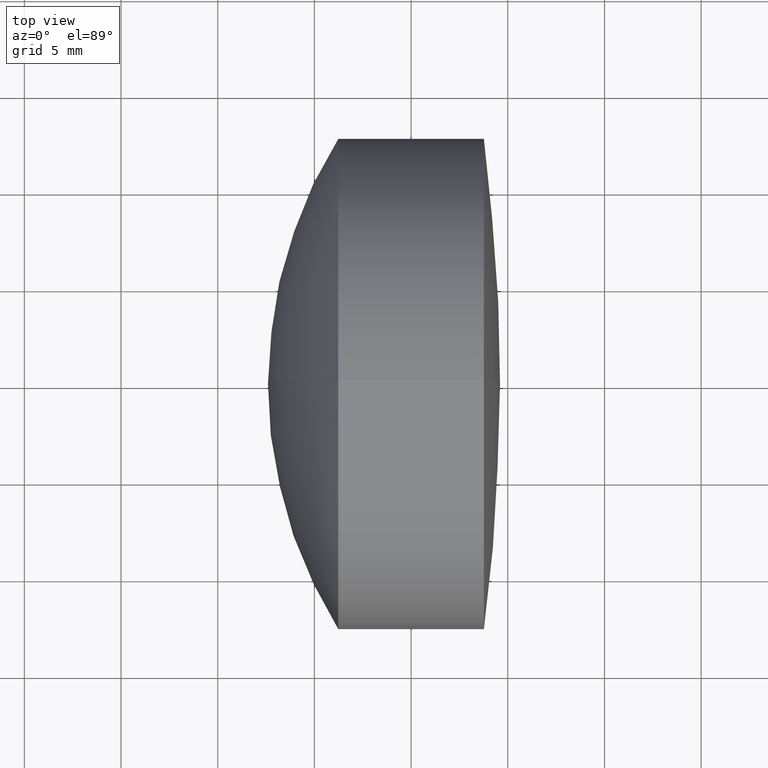
[diagram: clean part render]
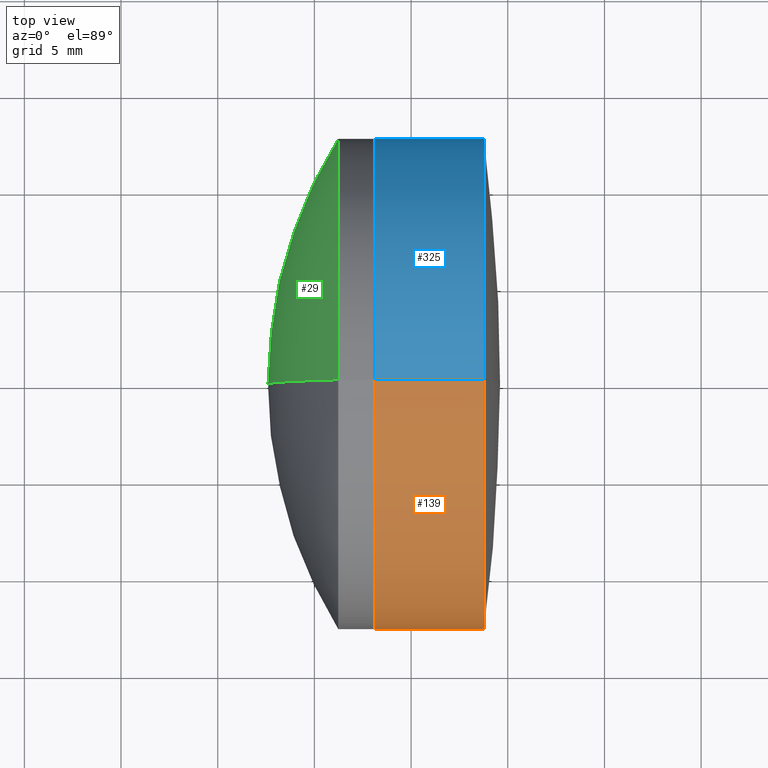
[diagram: same view with three faces highlighted in distinct colors, each labeled with its STEP entity id]
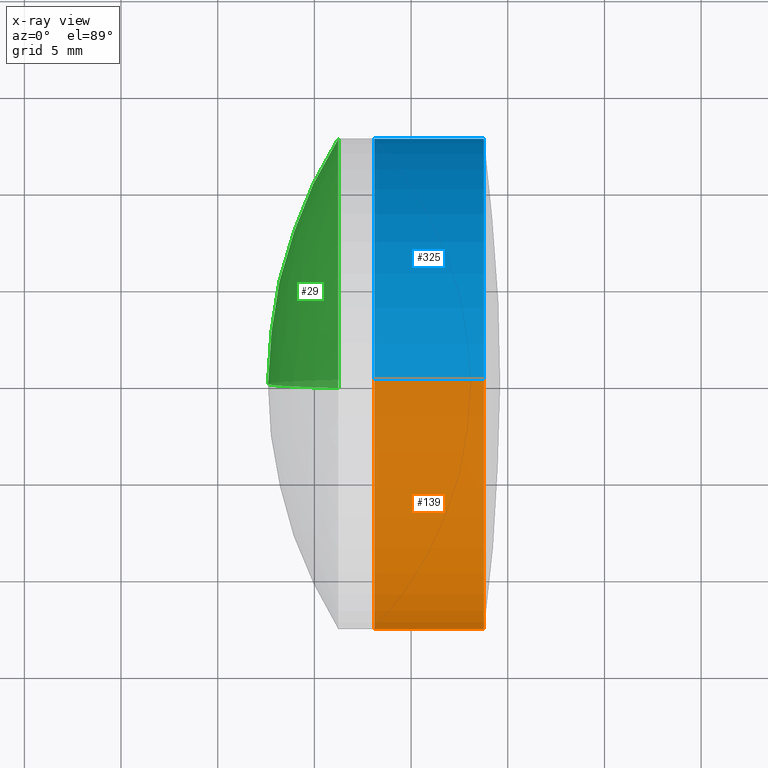
[diagram: x-ray of the same camera — body ghosted, the three highlighted faces saturated]
A machine part, top view with three faces highlighted in distinct colors.
The next image is the same camera in x-ray (body ghosted, the three faces saturated) — at least one of them is partly hidden behind the body in this view.
Their STEP definitions:

[orange] entity #139 — the highlighted cylindrical surface (partial cylindrical patch) has radius 12.7 mm, axis along (-1, -0, -0).
#9 = CARTESIAN_POINT ( 'NONE',  ( 278.0956821889693100, 0.0000000000000000000, 12.69999999999997800 ) ) ;
#14 = DIRECTION ( 'NONE',  ( -1.000000000000000000, -0.0000000000000000000, -0.0000000000000000000 ) ) ;
#33 = VECTOR ( 'NONE', #181, 1000.000000000000000 ) ;
#38 = EDGE_CURVE ( 'NONE', #256, #341, #107, .T. ) ;
#45 = EDGE_CURVE ( 'NONE', #235, #74, #172, .T. ) ;
#46 = DIRECTION ( 'NONE',  ( 0.0000000000000000000, 0.0000000000000000000, 1.000000000000000000 ) ) ;
#64 = CARTESIAN_POINT ( 'NONE',  ( -0.5519199926577972300, 0.0000000000000000000, 12.69999999999997100 ) ) ;
#71 = DIRECTION ( 'NONE',  ( 0.0000000000000000000, 0.0000000000000000000, 1.000000000000000000 ) ) ;
#74 = VERTEX_POINT ( 'NONE', #185 ) ;
#93 = CARTESIAN_POINT ( 'NONE',  ( 278.0956821889693100, 0.0000000000000000000, 0.0000000000000000000 ) ) ;
#97 = EDGE_LOOP ( 'NONE', ( #111, #119, #232, #127 ) ) ;
#99 = CARTESIAN_POINT ( 'NONE',  ( 283.7663387579516400, 1.555301434917134700E-015, -12.69999999999996600 ) ) ;
#105 = DIRECTION ( 'NONE',  ( -1.000000000000000000, -0.0000000000000000000, -0.0000000000000000000 ) ) ;
#107 = CIRCLE ( 'NONE', #274, 12.69999999999997800 ) ;
#110 = AXIS2_PLACEMENT_3D ( 'NONE', #233, #14, #71 ) ;
#111 = ORIENTED_EDGE ( 'NONE', *, *, #253, .F. ) ;
#112 = LINE ( 'NONE', #138, #321 ) ;
#119 = ORIENTED_EDGE ( 'NONE', *, *, #45, .T. ) ;
#127 = ORIENTED_EDGE ( 'NONE', *, *, #38, .F. ) ;
#138 = CARTESIAN_POINT ( 'NONE',  ( -0.5519199926577972300, 1.555301434917135100E-015, -12.69999999999997100 ) ) ;
#139 = ADVANCED_FACE ( 'NONE', ( #318 ), #299, .T. ) ;
#172 = CIRCLE ( 'NONE', #213, 12.69999999999996600 ) ;
#174 = DIRECTION ( 'NONE',  ( 0.0000000000000000000, 0.0000000000000000000, 1.000000000000000000 ) ) ;
#181 = DIRECTION ( 'NONE',  ( -1.000000000000000000, -0.0000000000000000000, -0.0000000000000000000 ) ) ;
#185 = CARTESIAN_POINT ( 'NONE',  ( 283.7663387579516400, 0.0000000000000000000, 12.69999999999996600 ) ) ;
#186 = DIRECTION ( 'NONE',  ( -1.000000000000000000, -0.0000000000000000000, -0.0000000000000000000 ) ) ;
#192 = EDGE_CURVE ( 'NONE', #74, #341, #212, .T. ) ;
#212 = LINE ( 'NONE', #64, #33 ) ;
#213 = AXIS2_PLACEMENT_3D ( 'NONE', #254, #331, #174 ) ;
#232 = ORIENTED_EDGE ( 'NONE', *, *, #192, .T. ) ;
#233 = CARTESIAN_POINT ( 'NONE',  ( -0.5519199926577972300, 0.0000000000000000000, 0.0000000000000000000 ) ) ;
#235 = VERTEX_POINT ( 'NONE', #99 ) ;
#247 = CARTESIAN_POINT ( 'NONE',  ( 278.0956821889693100, 1.555301434917136300E-015, -12.69999999999997100 ) ) ;
#253 = EDGE_CURVE ( 'NONE', #235, #256, #112, .T. ) ;
#254 = CARTESIAN_POINT ( 'NONE',  ( 283.7663387579516400, 0.0000000000000000000, 0.0000000000000000000 ) ) ;
#256 = VERTEX_POINT ( 'NONE', #247 ) ;
#274 = AXIS2_PLACEMENT_3D ( 'NONE', #93, #186, #46 ) ;
#299 = CYLINDRICAL_SURFACE ( 'NONE', #110, 12.69999999999997100 ) ;
#318 = FACE_OUTER_BOUND ( 'NONE', #97, .T. ) ;
#321 = VECTOR ( 'NONE', #105, 1000.000000000000000 ) ;
#331 = DIRECTION ( 'NONE',  ( -1.000000000000000000, -0.0000000000000000000, -0.0000000000000000000 ) ) ;
#341 = VERTEX_POINT ( 'NONE', #9 ) ;

[blue] entity #325 — the highlighted cylindrical surface (partial cylindrical patch) has radius 12.7 mm, axis along (-1, -0, -0).
#9 = CARTESIAN_POINT ( 'NONE',  ( 278.0956821889693100, 0.0000000000000000000, 12.69999999999997800 ) ) ;
#18 = DIRECTION ( 'NONE',  ( -1.000000000000000000, -0.0000000000000000000, -0.0000000000000000000 ) ) ;
#23 = ORIENTED_EDGE ( 'NONE', *, *, #39, .F. ) ;
#24 = DIRECTION ( 'NONE',  ( -1.000000000000000000, -0.0000000000000000000, -0.0000000000000000000 ) ) ;
#33 = VECTOR ( 'NONE', #181, 1000.000000000000000 ) ;
#39 = EDGE_CURVE ( 'NONE', #341, #256, #250, .T. ) ;
#52 = DIRECTION ( 'NONE',  ( -1.000000000000000000, -0.0000000000000000000, -0.0000000000000000000 ) ) ;
#64 = CARTESIAN_POINT ( 'NONE',  ( -0.5519199926577972300, 0.0000000000000000000, 12.69999999999997100 ) ) ;
#69 = EDGE_CURVE ( 'NONE', #74, #235, #101, .T. ) ;
#74 = VERTEX_POINT ( 'NONE', #185 ) ;
#99 = CARTESIAN_POINT ( 'NONE',  ( 283.7663387579516400, 1.555301434917134700E-015, -12.69999999999996600 ) ) ;
#101 = CIRCLE ( 'NONE', #120, 12.69999999999996600 ) ;
#105 = DIRECTION ( 'NONE',  ( -1.000000000000000000, -0.0000000000000000000, -0.0000000000000000000 ) ) ;
#112 = LINE ( 'NONE', #138, #321 ) ;
#120 = AXIS2_PLACEMENT_3D ( 'NONE', #287, #24, #312 ) ;
#138 = CARTESIAN_POINT ( 'NONE',  ( -0.5519199926577972300, 1.555301434917135100E-015, -12.69999999999997100 ) ) ;
#143 = AXIS2_PLACEMENT_3D ( 'NONE', #322, #52, #324 ) ;
#175 = ORIENTED_EDGE ( 'NONE', *, *, #192, .F. ) ;
#181 = DIRECTION ( 'NONE',  ( -1.000000000000000000, -0.0000000000000000000, -0.0000000000000000000 ) ) ;
#183 = CYLINDRICAL_SURFACE ( 'NONE', #143, 12.69999999999997100 ) ;
#185 = CARTESIAN_POINT ( 'NONE',  ( 283.7663387579516400, 0.0000000000000000000, 12.69999999999996600 ) ) ;
#192 = EDGE_CURVE ( 'NONE', #74, #341, #212, .T. ) ;
#212 = LINE ( 'NONE', #64, #33 ) ;
#216 = AXIS2_PLACEMENT_3D ( 'NONE', #286, #18, #225 ) ;
#220 = ORIENTED_EDGE ( 'NONE', *, *, #253, .T. ) ;
#222 = EDGE_LOOP ( 'NONE', ( #302, #220, #23, #175 ) ) ;
#225 = DIRECTION ( 'NONE',  ( 0.0000000000000000000, 0.0000000000000000000, 1.000000000000000000 ) ) ;
#235 = VERTEX_POINT ( 'NONE', #99 ) ;
#247 = CARTESIAN_POINT ( 'NONE',  ( 278.0956821889693100, 1.555301434917136300E-015, -12.69999999999997100 ) ) ;
#248 = FACE_OUTER_BOUND ( 'NONE', #222, .T. ) ;
#250 = CIRCLE ( 'NONE', #216, 12.69999999999997800 ) ;
#253 = EDGE_CURVE ( 'NONE', #235, #256, #112, .T. ) ;
#256 = VERTEX_POINT ( 'NONE', #247 ) ;
#286 = CARTESIAN_POINT ( 'NONE',  ( 278.0956821889693100, 0.0000000000000000000, 0.0000000000000000000 ) ) ;
#287 = CARTESIAN_POINT ( 'NONE',  ( 283.7663387579516400, 0.0000000000000000000, 0.0000000000000000000 ) ) ;
#302 = ORIENTED_EDGE ( 'NONE', *, *, #69, .T. ) ;
#312 = DIRECTION ( 'NONE',  ( 0.0000000000000000000, 0.0000000000000000000, 1.000000000000000000 ) ) ;
#321 = VECTOR ( 'NONE', #105, 1000.000000000000000 ) ;
#322 = CARTESIAN_POINT ( 'NONE',  ( -0.5519199926577972300, 0.0000000000000000000, 0.0000000000000000000 ) ) ;
#324 = DIRECTION ( 'NONE',  ( 0.0000000000000000000, 0.0000000000000000000, 1.000000000000000000 ) ) ;
#325 = ADVANCED_FACE ( 'NONE', ( #248 ), #183, .T. ) ;
#341 = VERTEX_POINT ( 'NONE', #9 ) ;

[green] entity #29 — the highlighted spherical surface has radius 23.99 mm.
#22 = CARTESIAN_POINT ( 'NONE',  ( 272.5989865545651600, 0.0000000000000000000, 5.503456575654534800E-015 ) ) ;
#25 = AXIS2_PLACEMENT_3D ( 'NONE', #315, #132, #236 ) ;
#27 = ORIENTED_EDGE ( 'NONE', *, *, #150, .F. ) ;
#29 = ADVANCED_FACE ( 'NONE', ( #346 ), #252, .T. ) ;
#47 = CARTESIAN_POINT ( 'NONE',  ( 296.5889865545651700, 0.0000000000000000000, 6.972420411231785500E-015 ) ) ;
#54 = AXIS2_PLACEMENT_3D ( 'NONE', #125, #306, #128 ) ;
#65 = EDGE_CURVE ( 'NONE', #267, #278, #258, .T. ) ;
#72 = CARTESIAN_POINT ( 'NONE',  ( 276.2363429916271700, 0.0000000000000000000, -12.69999999999999900 ) ) ;
#125 = CARTESIAN_POINT ( 'NONE',  ( 296.5889865545651700, 0.0000000000000000000, 6.972420411231785500E-015 ) ) ;
#128 = DIRECTION ( 'NONE',  ( 0.0000000000000000000, 0.0000000000000000000, -1.000000000000000000 ) ) ;
#132 = DIRECTION ( 'NONE',  ( 0.0000000000000000000, 1.000000000000000000, -0.0000000000000000000 ) ) ;
#141 = DIRECTION ( 'NONE',  ( 0.0000000000000000000, -1.000000000000000000, -1.224646799147353200E-016 ) ) ;
#150 = EDGE_CURVE ( 'NONE', #267, #156, #244, .T. ) ;
#156 = VERTEX_POINT ( 'NONE', #22 ) ;
#200 = CARTESIAN_POINT ( 'NONE',  ( 276.2363429916271700, 0.0000000000000000000, 0.0000000000000000000 ) ) ;
#211 = EDGE_LOOP ( 'NONE', ( #27, #228, #224 ) ) ;
#224 = ORIENTED_EDGE ( 'NONE', *, *, #243, .T. ) ;
#227 = CIRCLE ( 'NONE', #25, 23.99000000000001600 ) ;
#228 = ORIENTED_EDGE ( 'NONE', *, *, #65, .T. ) ;
#236 = DIRECTION ( 'NONE',  ( 0.0000000000000000000, 0.0000000000000000000, 1.000000000000000000 ) ) ;
#243 = EDGE_CURVE ( 'NONE', #278, #156, #227, .T. ) ;
#244 = CIRCLE ( 'NONE', #265, 23.99000000000001600 ) ;
#252 = SPHERICAL_SURFACE ( 'NONE', #54, 23.99000000000001600 ) ;
#258 = CIRCLE ( 'NONE', #263, 12.70000000000000600 ) ;
#263 = AXIS2_PLACEMENT_3D ( 'NONE', #200, #280, #282 ) ;
#265 = AXIS2_PLACEMENT_3D ( 'NONE', #47, #141, #326 ) ;
#267 = VERTEX_POINT ( 'NONE', #275 ) ;
#275 = CARTESIAN_POINT ( 'NONE',  ( 276.2363429916271700, -1.555301434917138400E-015, 12.70000000000000600 ) ) ;
#278 = VERTEX_POINT ( 'NONE', #72 ) ;
#280 = DIRECTION ( 'NONE',  ( -1.000000000000000000, -0.0000000000000000000, -0.0000000000000000000 ) ) ;
#282 = DIRECTION ( 'NONE',  ( 0.0000000000000000000, 0.0000000000000000000, 1.000000000000000000 ) ) ;
#306 = DIRECTION ( 'NONE',  ( -0.0000000000000000000, -1.000000000000000000, -0.0000000000000000000 ) ) ;
#315 = CARTESIAN_POINT ( 'NONE',  ( 296.5889865545651700, 0.0000000000000000000, 6.972420411231785500E-015 ) ) ;
#326 = DIRECTION ( 'NONE',  ( 0.0000000000000000000, 1.224646799147353200E-016, -1.000000000000000000 ) ) ;
#346 = FACE_OUTER_BOUND ( 'NONE', #211, .T. ) ;